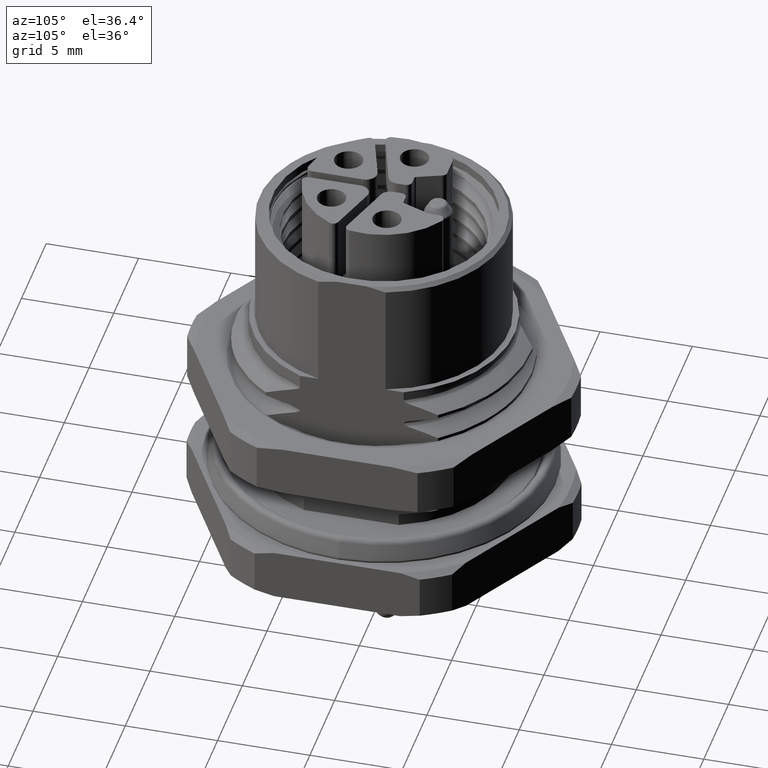
[diagram: clean part render]
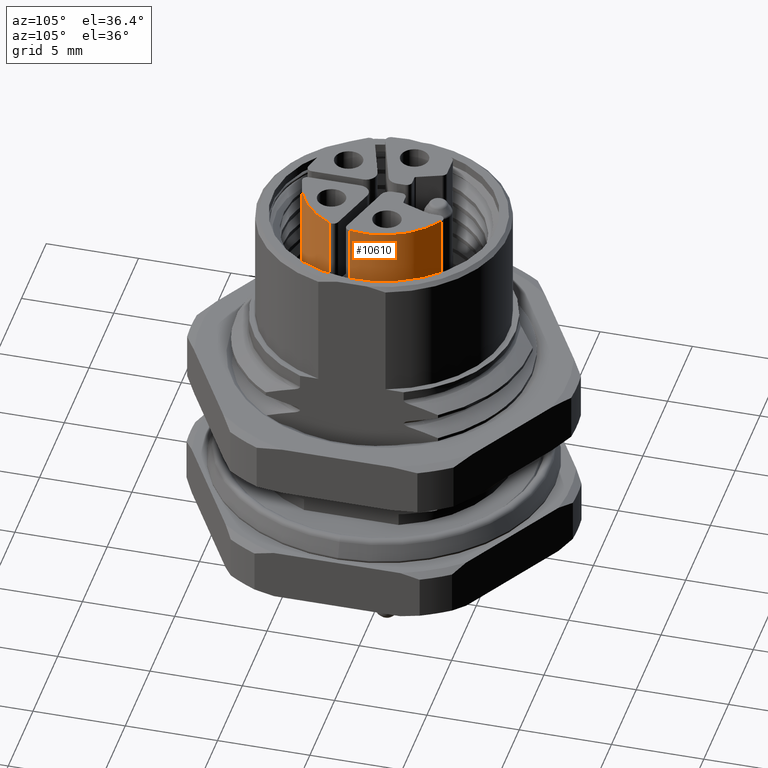
[diagram: same view with one face highlighted and labeled with its STEP entity id]
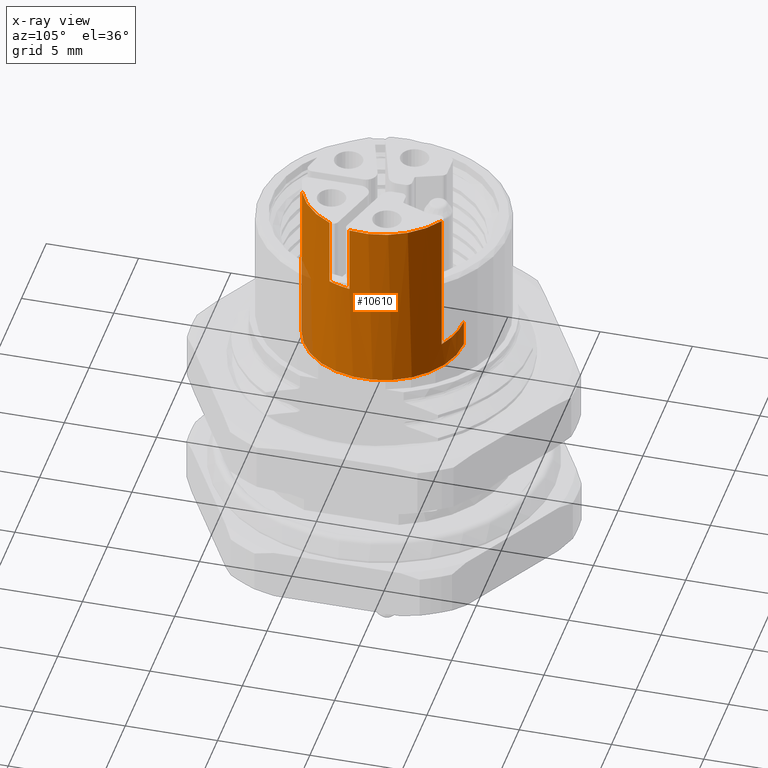
[diagram: x-ray of the same camera — body ghosted, the highlighted face saturated]
A machine part, auxiliary view. The second image highlights one B-rep face of the part: STEP entity #10610.
The next image is the same camera in x-ray: the body ghosted, the highlighted face saturated — about 5% of this face is hidden behind the body in this view.
In plain terms, the highlighted cylindrical surface (partial cylindrical patch) has radius 4.325 mm, axis along (0, 0, -1).
Its self-contained STEP definition (entity closure, byte-faithful):
#2793=CARTESIAN_POINT('',(0.E0,0.E0,8.3E0));
#2794=DIRECTION('',(0.E0,0.E0,-1.E0));
#2795=DIRECTION('',(0.E0,1.E0,0.E0));
#2796=AXIS2_PLACEMENT_3D('',#2793,#2794,#2795);
#2803=DIRECTION('',(0.E0,0.E0,-1.E0));
#2804=VECTOR('',#2803,3.8E0);
#2805=CARTESIAN_POINT('',(6.178571428571E-1,-4.280639852992E0,1.775E1));
#2806=LINE('',#2805,#2804);
#2807=DIRECTION('',(0.E0,0.E0,1.E0));
#2808=VECTOR('',#2807,3.8E0);
#2809=CARTESIAN_POINT('',(3.880202068862E0,-1.910407523227E0,1.395E1));
#2810=LINE('',#2809,#2808);
#2811=DIRECTION('',(0.E0,0.E0,-1.E0));
#2812=VECTOR('',#2811,3.8E0);
#2813=CARTESIAN_POINT('',(4.262058783339E0,-7.351733995193E-1,1.775E1));
#2814=LINE('',#2813,#2812);
#2815=DIRECTION('',(0.E0,0.E0,1.E0));
#2816=VECTOR('',#2815,8.E0);
#2817=CARTESIAN_POINT('',(2.202795031056E0,3.722004708642E0,9.75E0));
#2818=LINE('',#2817,#2816);
#2819=DIRECTION('',(0.E0,0.E0,1.E0));
#2820=VECTOR('',#2819,1.45E0);
#2821=CARTESIAN_POINT('',(0.E0,4.325E0,8.3E0));
#2822=LINE('',#2821,#2820);
#2839=DIRECTION('',(0.E0,0.E0,1.E0));
#2840=VECTOR('',#2839,5.65E0);
#2841=CARTESIAN_POINT('',(0.E0,-4.325E0,8.3E0));
#2842=LINE('',#2841,#2840);
#2856=CARTESIAN_POINT('',(0.E0,0.E0,9.75E0));
#2857=DIRECTION('',(0.E0,0.E0,-1.E0));
#2858=DIRECTION('',(0.E0,1.E0,0.E0));
#2859=AXIS2_PLACEMENT_3D('',#2856,#2857,#2858);
#3002=CARTESIAN_POINT('',(0.E0,0.E0,1.775E1));
#3003=DIRECTION('',(0.E0,0.E0,-1.E0));
#3004=DIRECTION('',(5.093167701863E-1,8.605791233855E-1,0.E0));
#3005=AXIS2_PLACEMENT_3D('',#3002,#3003,#3004);
#3096=CARTESIAN_POINT('',(0.E0,0.E0,1.395E1));
#3097=DIRECTION('',(0.E0,0.E0,-1.E0));
#3098=DIRECTION('',(9.854471175351E-1,-1.699822889062E-1,0.E0));
#3099=AXIS2_PLACEMENT_3D('',#3096,#3097,#3098);
#3109=CARTESIAN_POINT('',(0.E0,0.E0,1.395E1));
#3110=DIRECTION('',(0.E0,0.E0,-1.E0));
#3111=DIRECTION('',(1.428571428571E-1,-9.897433186108E-1,0.E0));
#3112=AXIS2_PLACEMENT_3D('',#3109,#3110,#3111);
#3162=CARTESIAN_POINT('',(0.E0,0.E0,1.775E1));
#3163=DIRECTION('',(0.E0,0.E0,-1.E0));
#3164=DIRECTION('',(8.971565477137E-1,-4.417127221334E-1,0.E0));
#3165=AXIS2_PLACEMENT_3D('',#3162,#3163,#3164);
#7042=CARTESIAN_POINT('',(2.202795031056E0,3.722004708642E0,1.775E1));
#7044=VERTEX_POINT('',#7042);
#7048=CARTESIAN_POINT('',(2.202795031056E0,3.722004708642E0,9.75E0));
#7049=VERTEX_POINT('',#7048);
#7070=CARTESIAN_POINT('',(4.262058783339E0,-7.351733995193E-1,1.775E1));
#7071=VERTEX_POINT('',#7070);
#7072=CARTESIAN_POINT('',(4.262058783339E0,-7.351733995193E-1,1.395E1));
#7073=VERTEX_POINT('',#7072);
#7074=CARTESIAN_POINT('',(3.880202068862E0,-1.910407523227E0,1.775E1));
#7076=VERTEX_POINT('',#7074);
#7080=CARTESIAN_POINT('',(3.880202068862E0,-1.910407523227E0,1.395E1));
#7081=VERTEX_POINT('',#7080);
#7086=CARTESIAN_POINT('',(6.178571428571E-1,-4.280639852992E0,1.775E1));
#7087=VERTEX_POINT('',#7086);
#7088=CARTESIAN_POINT('',(6.178571428571E-1,-4.280639852992E0,1.395E1));
#7089=VERTEX_POINT('',#7088);
#7162=CARTESIAN_POINT('',(0.E0,4.325E0,9.75E0));
#7163=VERTEX_POINT('',#7162);
#7164=CARTESIAN_POINT('',(0.E0,-4.325E0,1.395E1));
#7165=VERTEX_POINT('',#7164);
#7186=CARTESIAN_POINT('',(0.E0,4.325E0,8.3E0));
#7187=CARTESIAN_POINT('',(0.E0,-4.325E0,8.3E0));
#7188=VERTEX_POINT('',#7186);
#7189=VERTEX_POINT('',#7187);
#10580=CARTESIAN_POINT('',(0.E0,0.E0,1.836E1));
#10581=DIRECTION('',(0.E0,0.E0,-1.E0));
#10582=DIRECTION('',(0.E0,-1.E0,0.E0));
#10583=AXIS2_PLACEMENT_3D('',#10580,#10581,#10582);
#10584=CYLINDRICAL_SURFACE('',#10583,4.325E0);
#10585=ORIENTED_EDGE('',*,*,#10573,.T.);
#10587=ORIENTED_EDGE('',*,*,#10586,.T.);
#10589=ORIENTED_EDGE('',*,*,#10588,.F.);
#10591=ORIENTED_EDGE('',*,*,#10590,.F.);
#10593=ORIENTED_EDGE('',*,*,#10592,.F.);
#10595=ORIENTED_EDGE('',*,*,#10594,.F.);
#10597=ORIENTED_EDGE('',*,*,#10596,.F.);
#10599=ORIENTED_EDGE('',*,*,#10598,.F.);
#10601=ORIENTED_EDGE('',*,*,#10600,.F.);
#10603=ORIENTED_EDGE('',*,*,#10602,.F.);
#10605=ORIENTED_EDGE('',*,*,#10604,.F.);
#10607=ORIENTED_EDGE('',*,*,#10606,.F.);
#10608=EDGE_LOOP('',(#10585,#10587,#10589,#10591,#10593,#10595,#10597,#10599,
#10601,#10603,#10605,#10607));
#10609=FACE_OUTER_BOUND('',#10608,.F.);
#2797=CIRCLE('',#2796,4.325E0);
#2860=CIRCLE('',#2859,4.325E0);
#3006=CIRCLE('',#3005,4.325E0);
#3100=CIRCLE('',#3099,4.325E0);
#3113=CIRCLE('',#3112,4.325E0);
#3166=CIRCLE('',#3165,4.325E0);
#10573=EDGE_CURVE('',#7188,#7189,#2797,.T.);
#10586=EDGE_CURVE('',#7189,#7165,#2842,.T.);
#10588=EDGE_CURVE('',#7089,#7165,#3113,.T.);
#10590=EDGE_CURVE('',#7087,#7089,#2806,.T.);
#10592=EDGE_CURVE('',#7076,#7087,#3166,.T.);
#10594=EDGE_CURVE('',#7081,#7076,#2810,.T.);
#10596=EDGE_CURVE('',#7073,#7081,#3100,.T.);
#10598=EDGE_CURVE('',#7071,#7073,#2814,.T.);
#10600=EDGE_CURVE('',#7044,#7071,#3006,.T.);
#10602=EDGE_CURVE('',#7049,#7044,#2818,.T.);
#10604=EDGE_CURVE('',#7163,#7049,#2860,.T.);
#10606=EDGE_CURVE('',#7188,#7163,#2822,.T.);
#10610=ADVANCED_FACE('',(#10609),#10584,.T.);